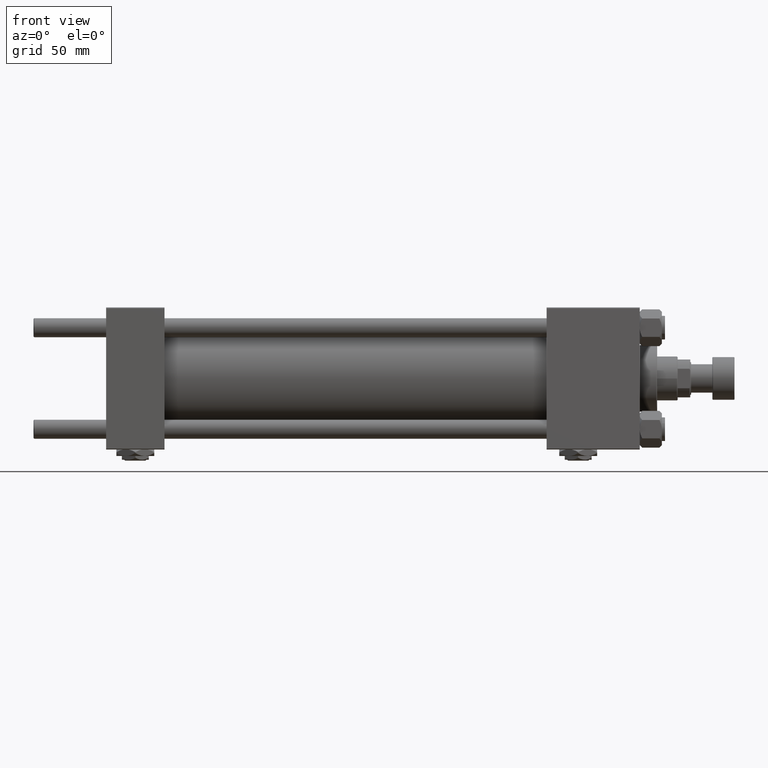
[diagram: clean part render]
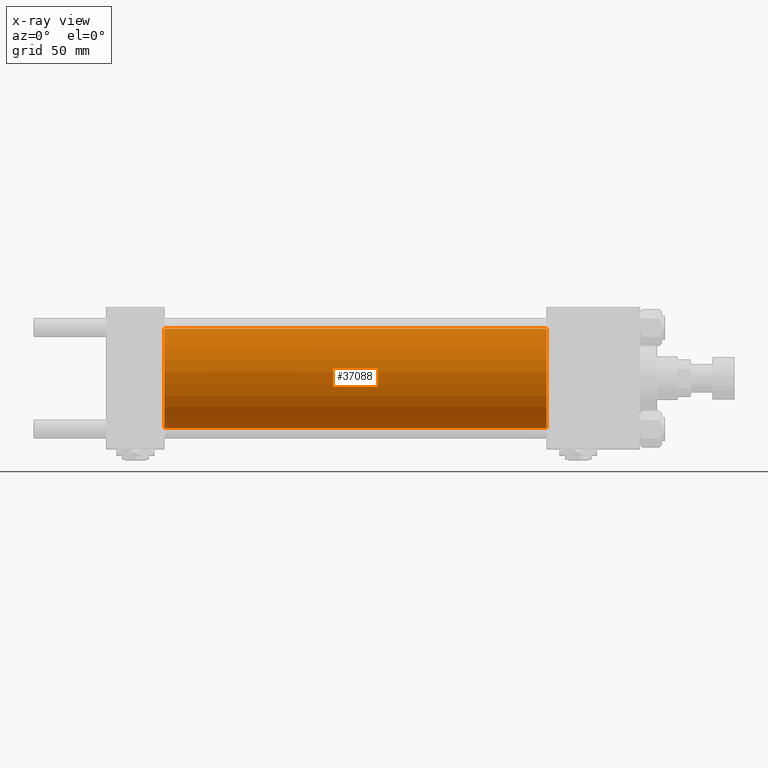
[diagram: x-ray — body ghosted, one internal face saturated and labeled with its STEP entity id]
A machine part, front view, then the same camera in x-ray: the body is ghosted and one INTERNAL B-rep face — a face not visible from any outside direction — is saturated and labeled: STEP entity #37088.
In plain terms, the highlighted cylindrical surface (partial cylindrical patch) has radius 31.5 mm, axis along (-1, -0, -0).
Its self-contained STEP definition (entity closure, byte-faithful):
#240 = AXIS2_PLACEMENT_3D ( 'NONE', #29526, #17610, #9166 ) ;
#3451 = LINE ( 'NONE', #35720, #14820 ) ;
#7588 = ORIENTED_EDGE ( 'NONE', *, *, #48119, .T. ) ;
#7678 = DIRECTION ( 'NONE',  ( -1.000000000000000000, -0.000000000000000000, -0.000000000000000000 ) ) ;
#8222 = CARTESIAN_POINT ( 'NONE',  ( 37.00000000000000000, 0.000000000000000000, 31.50000000000000000 ) ) ;
#9166 = DIRECTION ( 'NONE',  ( 0.000000000000000000, 0.000000000000000000, 1.000000000000000000 ) ) ;
#11026 = ORIENTED_EDGE ( 'NONE', *, *, #35376, .T. ) ;
#14820 = VECTOR ( 'NONE', #7678, 1000.000000000000000 ) ;
#15364 = VECTOR ( 'NONE', #41638, 1000.000000000000000 ) ;
#16322 = DIRECTION ( 'NONE',  ( 1.000000000000000000, 0.000000000000000000, 0.000000000000000000 ) ) ;
#16764 = EDGE_LOOP ( 'NONE', ( #7588, #11026, #44744, #21943 ) ) ;
#17539 = CARTESIAN_POINT ( 'NONE',  ( 278.9999999999999432, 3.857637417314162689E-15, -31.50000000000000000 ) ) ;
#17610 = DIRECTION ( 'NONE',  ( -1.000000000000000000, -0.000000000000000000, -0.000000000000000000 ) ) ;
#19839 = CARTESIAN_POINT ( 'NONE',  ( 37.00000000000000000, 3.857637417314162689E-15, -31.50000000000000000 ) ) ;
#20028 = DIRECTION ( 'NONE',  ( 0.000000000000000000, 0.000000000000000000, -1.000000000000000000 ) ) ;
#20747 = CIRCLE ( 'NONE', #29222, 31.50000000000000000 ) ;
#20770 = VERTEX_POINT ( 'NONE', #30055 ) ;
#21063 = CIRCLE ( 'NONE', #50633, 31.50000000000000000 ) ;
#21240 = LINE ( 'NONE', #17539, #15364 ) ;
#21943 = ORIENTED_EDGE ( 'NONE', *, *, #47805, .F. ) ;
#25012 = VERTEX_POINT ( 'NONE', #19839 ) ;
#29001 = EDGE_CURVE ( 'NONE', #49628, #25012, #21063, .T. ) ;
#29222 = AXIS2_PLACEMENT_3D ( 'NONE', #39894, #16322, #20028 ) ;
#29526 = CARTESIAN_POINT ( 'NONE',  ( 278.9999999999999432, 0.000000000000000000, 0.000000000000000000 ) ) ;
#29759 = CARTESIAN_POINT ( 'NONE',  ( 37.00000000000000000, 0.000000000000000000, 0.000000000000000000 ) ) ;
#30055 = CARTESIAN_POINT ( 'NONE',  ( 278.9999999999999432, 3.857637417314162689E-15, -31.50000000000000000 ) ) ;
#32293 = CARTESIAN_POINT ( 'NONE',  ( 278.9999999999999432, 0.000000000000000000, 31.50000000000000000 ) ) ;
#35376 = EDGE_CURVE ( 'NONE', #20770, #25012, #21240, .T. ) ;
#35720 = CARTESIAN_POINT ( 'NONE',  ( 278.9999999999999432, 0.000000000000000000, 31.50000000000000000 ) ) ;
#37088 = ADVANCED_FACE ( 'NONE', ( #50403 ), #50656, .F. ) ;
#37955 = DIRECTION ( 'NONE',  ( 0.000000000000000000, 0.000000000000000000, -1.000000000000000000 ) ) ;
#39894 = CARTESIAN_POINT ( 'NONE',  ( 278.9999999999999432, 0.000000000000000000, 0.000000000000000000 ) ) ;
#41638 = DIRECTION ( 'NONE',  ( -1.000000000000000000, -0.000000000000000000, -0.000000000000000000 ) ) ;
#44744 = ORIENTED_EDGE ( 'NONE', *, *, #29001, .F. ) ;
#47805 = EDGE_CURVE ( 'NONE', #49686, #49628, #3451, .T. ) ;
#48119 = EDGE_CURVE ( 'NONE', #49686, #20770, #20747, .T. ) ;
#49628 = VERTEX_POINT ( 'NONE', #8222 ) ;
#49686 = VERTEX_POINT ( 'NONE', #32293 ) ;
#50374 = DIRECTION ( 'NONE',  ( 1.000000000000000000, 0.000000000000000000, 0.000000000000000000 ) ) ;
#50403 = FACE_OUTER_BOUND ( 'NONE', #16764, .T. ) ;
#50633 = AXIS2_PLACEMENT_3D ( 'NONE', #29759, #50374, #37955 ) ;
#50656 = CYLINDRICAL_SURFACE ( 'NONE', #240, 31.50000000000000000 ) ;